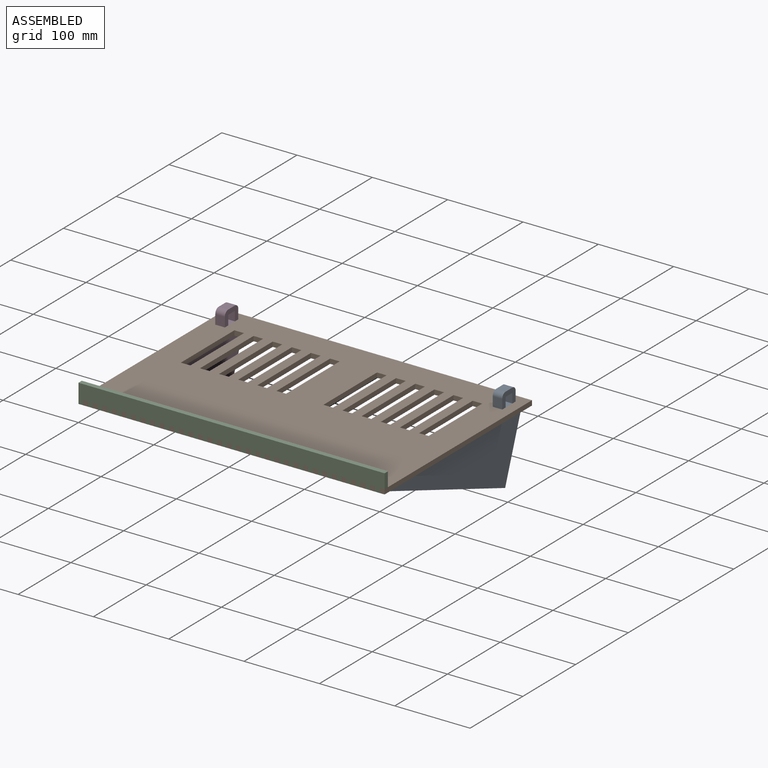
[diagram: assembled view]
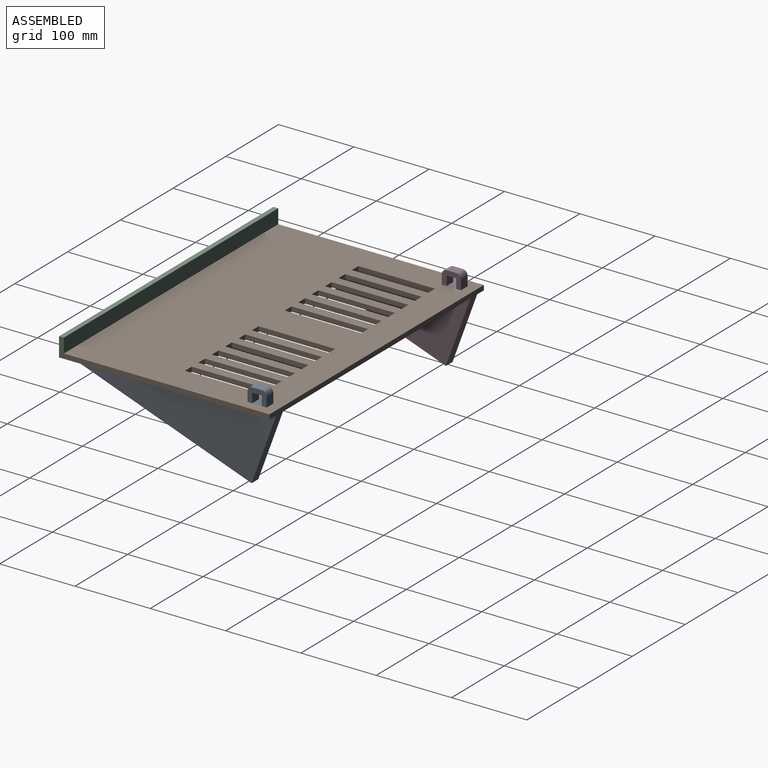
[diagram: assembled view, second angle]
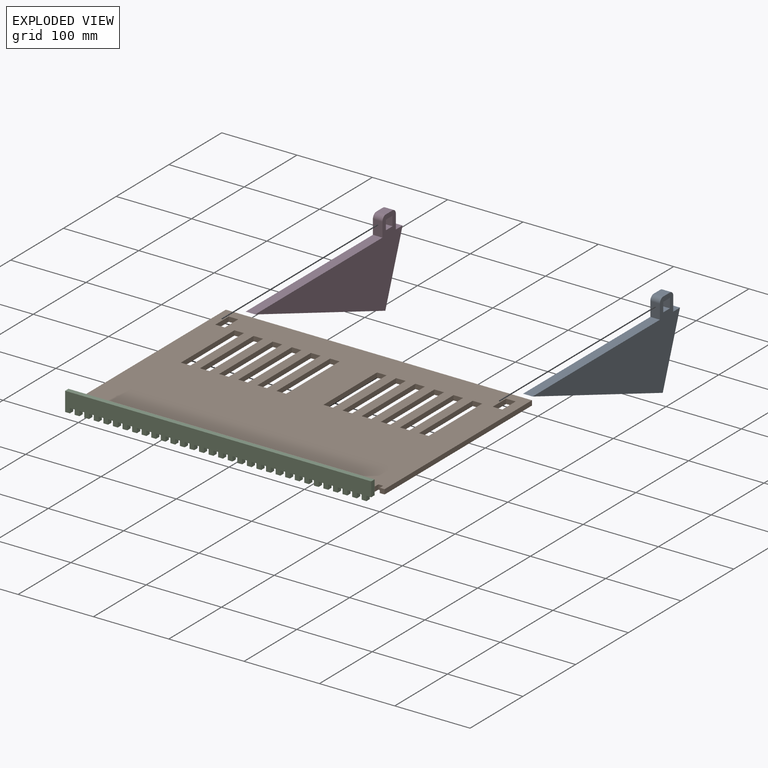
[diagram: exploded view]
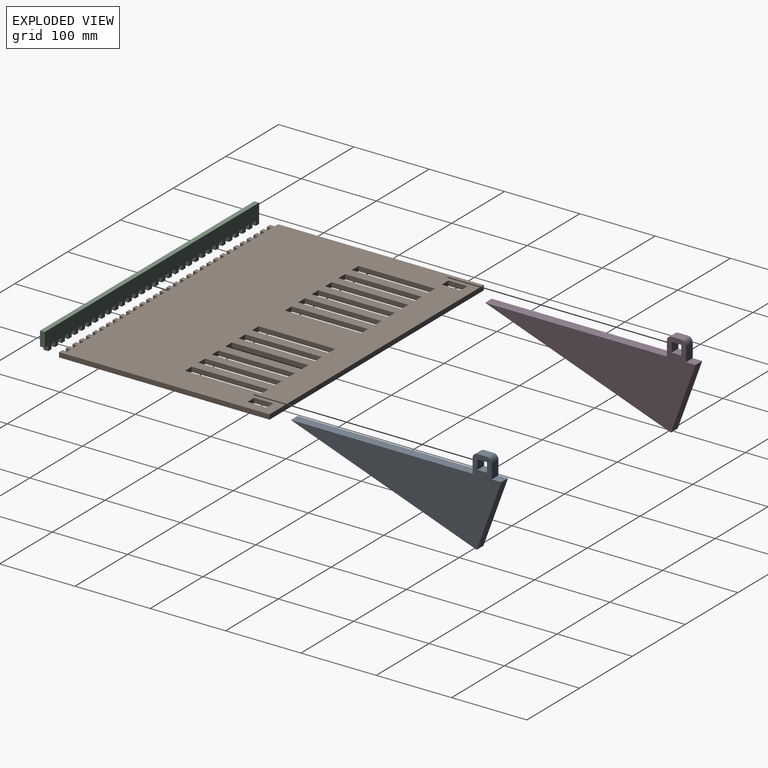
[diagram: exploded view, second angle]
ASSEMBLY  parts=4 mates=3
PART A: 15 faces, bbox 12.7x262.6x113.3 mm
  f0: plane 262.55x113.3mm, normal (1,0,0), area 13011.3mm2, adj f2,f3,f4,f5,f6,f7,f8,f9
  f1: plane 262.55x113.3mm, normal (-1,0,0), area 13011.3mm2, adj f2,f3,f4,f5,f6,f7,f8,f9
  f2: plane 226.75x82.53mm, normal (0,-0.34,0.94), area 3064.5mm2, adj f0,f1,f3,f10
  f3: plane 262.55x12.7mm, normal (0,0,-1), area 3334.4mm2, adj f0,f1,f2,f4
  f4: plane 95.56x12.7mm, normal (0,1,0), area 1213.6mm2, adj f0,f1,f3,f5
  f5: plane 12.7x11.93mm, normal (0,-0.34,0.94), area 161.3mm2, adj f0,f1,f4,f6
  f6: plane 17.9x12.7mm, normal (0,0.94,0.34), area 241.9mm2, adj f0,f1,f5,f7
  f7: cylinder r=6.35mm len=12.7mm, axis (-1,0,0), area 126.7mm2, adj f0,f1,f6,f8
  f8: plane 12.7x11.93mm, normal (0,-0.34,0.94), area 161.3mm2, adj f0,f1,f7,f9
  f9: cylinder r=6.35mm len=12.7mm, axis (-1,0,0), area 126.7mm2, adj f0,f1,f8,f10
  f10: plane 17.9x12.7mm, normal (0,-0.94,-0.34), area 241.9mm2, adj f0,f1,f2,f9
  f11: plane 12.7x11.93mm, normal (0,0.34,-0.94), area 161.3mm2, adj f0,f1,f12,f14
  f12: plane 12.7x11.93mm, normal (0,0.94,0.34), area 161.3mm2, adj f0,f1,f11,f13
  f13: plane 12.7x11.93mm, normal (0,-0.34,0.94), area 161.3mm2, adj f0,f1,f12,f14
  f14: plane 12.7x11.93mm, normal (0,-0.94,-0.34), area 161.3mm2, adj f0,f1,f11,f13
PART B: 188 faces, bbox 406.4x279.4x6.4 mm
  f0: plane 406.4x279.4mm, normal (0,0,1), area 96128.8mm2, adj f2,f3,f4,f5,f6,f7,f8,f9
  f1: plane 406.4x279.4mm, normal (0,0,-1), area 96128.8mm2, adj f2,f3,f4,f5,f6,f7,f8,f9
  f2: plane 6.35x6.35mm, normal (0,-1,0), area 40.3mm2, adj f0,f1,f127,f131
  f3: plane 6.35x6.35mm, normal (0,-1,0), area 40.3mm2, adj f0,f1,f124,f128
  f4: plane 6.35x6.35mm, normal (0,-1,0), area 40.3mm2, adj f0,f1,f121,f125
  f5: plane 6.35x6.35mm, normal (0,-1,0), area 40.3mm2, adj f0,f1,f118,f122
  f6: plane 6.35x6.35mm, normal (0,-1,0), area 40.3mm2, adj f0,f1,f115,f119
  f7: plane 6.35x6.35mm, normal (0,-1,0), area 40.3mm2, adj f0,f1,f112,f116
  f8: plane 6.35x6.35mm, normal (0,-1,0), area 40.3mm2, adj f0,f1,f109,f113
  f9: plane 6.35x6.35mm, normal (0,-1,0), area 40.3mm2, adj f0,f1,f106,f110
  f10: plane 6.35x6.35mm, normal (0,-1,0), area 40.3mm2, adj f0,f1,f103,f107
  f11: plane 6.35x6.35mm, normal (0,-1,0), area 40.3mm2, adj f0,f1,f100,f104
  f12: plane 6.35x6.35mm, normal (0,-1,0), area 40.3mm2, adj f0,f1,f97,f101
  f13: plane 6.35x6.35mm, normal (0,-1,0), area 40.3mm2, adj f0,f1,f94,f98
  f14: plane 6.35x6.35mm, normal (0,-1,0), area 40.3mm2, adj f0,f1,f91,f95
  f15: plane 6.35x6.35mm, normal (0,-1,0), area 40.3mm2, adj f0,f1,f88,f92
  f16: plane 6.35x6.35mm, normal (0,-1,0), area 40.3mm2, adj f0,f1,f85,f89
  f17: plane 6.35x6.35mm, normal (0,-1,0), area 40.3mm2, adj f0,f1,f82,f86
  f18: plane 6.35x6.35mm, normal (0,-1,0), area 40.3mm2, adj f0,f1,f79,f83
  f19: plane 6.35x6.35mm, normal (0,-1,0), area 40.3mm2, adj f0,f1,f76,f80
  f20: plane 6.35x6.35mm, normal (0,-1,0), area 40.3mm2, adj f0,f1,f73,f77
  f21: plane 6.35x6.35mm, normal (0,-1,0), area 40.3mm2, adj f0,f1,f70,f74
  f22: plane 6.35x6.35mm, normal (0,-1,0), area 40.3mm2, adj f0,f1,f67,f71
  f23: plane 6.35x6.35mm, normal (0,-1,0), area 40.3mm2, adj f0,f1,f64,f68
  f24: plane 6.35x6.35mm, normal (0,-1,0), area 40.3mm2, adj f0,f1,f61,f65
  f25: plane 6.35x6.35mm, normal (0,-1,0), area 40.3mm2, adj f0,f1,f58,f62
  f26: plane 6.35x6.35mm, normal (0,-1,0), area 40.3mm2, adj f0,f1,f55,f59
  f27: plane 6.35x6.35mm, normal (0,-1,0), area 40.3mm2, adj f0,f1,f52,f56
  f28: plane 6.35x6.35mm, normal (0,-1,0), area 40.3mm2, adj f0,f1,f49,f53
  f29: plane 6.35x6.35mm, normal (0,-1,0), area 40.3mm2, adj f0,f1,f46,f50
  f30: plane 6.35x6.35mm, normal (0,-1,0), area 40.3mm2, adj f0,f1,f45,f47
  f31: plane 6.35x6.35mm, normal (0,-1,0), area 40.3mm2, adj f0,f1,f40,f43
  f32: plane 6.35x6.35mm, normal (0,-1,0), area 40.3mm2, adj f0,f1,f37,f41
  f33: plane 6.35x6.35mm, normal (0,-1,0), area 40.3mm2, adj f0,f1,f36,f38
  f34: plane 406.4x6.35mm, normal (0,1,0), area 2580.6mm2, adj f0,f1,f35,f36
  f35: plane 273.05x6.35mm, normal (-1,0,0), area 1733.9mm2, adj f0,f1,f34,f130
  f36: plane 279.4x6.35mm, normal (1,0,0), area 1774.2mm2, adj f0,f1,f33,f34
  f37: plane 6.35x6.35mm, normal (1,0,0), area 40.3mm2, adj f0,f1,f32,f39
  f38: plane 6.35x6.35mm, normal (-1,0,0), area 40.3mm2, adj f0,f1,f33,f39
  f39: plane 6.35x6.35mm, normal (0,-1,0), area 40.3mm2, adj f0,f1,f37,f38
  f40: plane 6.35x6.35mm, normal (1,0,0), area 40.3mm2, adj f0,f1,f31,f42
  f41: plane 6.35x6.35mm, normal (-1,0,0), area 40.3mm2, adj f0,f1,f32,f42
  f42: plane 6.35x6.35mm, normal (0,-1,0), area 40.3mm2, adj f0,f1,f40,f41
  f43: plane 6.35x6.35mm, normal (-1,0,0), area 40.3mm2, adj f0,f1,f31,f44
  f44: plane 6.35x6.35mm, normal (0,-1,0), area 40.3mm2, adj f0,f1,f43,f45
  f45: plane 6.35x6.35mm, normal (1,0,0), area 40.3mm2, adj f0,f1,f30,f44
  f46: plane 6.35x6.35mm, normal (1,0,0), area 40.3mm2, adj f0,f1,f29,f48
  f47: plane 6.35x6.35mm, normal (-1,0,0), area 40.3mm2, adj f0,f1,f30,f48
  f48: plane 6.35x6.35mm, normal (0,-1,0), area 40.3mm2, adj f0,f1,f46,f47
  f49: plane 6.35x6.35mm, normal (1,0,0), area 40.3mm2, adj f0,f1,f28,f51
  f50: plane 6.35x6.35mm, normal (-1,0,0), area 40.3mm2, adj f0,f1,f29,f51
  f51: plane 6.35x6.35mm, normal (0,-1,0), area 40.3mm2, adj f0,f1,f49,f50
  f52: plane 6.35x6.35mm, normal (1,0,0), area 40.3mm2, adj f0,f1,f27,f54
  f53: plane 6.35x6.35mm, normal (-1,0,0), area 40.3mm2, adj f0,f1,f28,f54
  f54: plane 6.35x6.35mm, normal (0,-1,0), area 40.3mm2, adj f0,f1,f52,f53
  f55: plane 6.35x6.35mm, normal (1,0,0), area 40.3mm2, adj f0,f1,f26,f57
  f56: plane 6.35x6.35mm, normal (-1,0,0), area 40.3mm2, adj f0,f1,f27,f57
  f57: plane 6.35x6.35mm, normal (0,-1,0), area 40.3mm2, adj f0,f1,f55,f56
  f58: plane 6.35x6.35mm, normal (1,0,0), area 40.3mm2, adj f0,f1,f25,f60
  f59: plane 6.35x6.35mm, normal (-1,0,0), area 40.3mm2, adj f0,f1,f26,f60
  f60: plane 6.35x6.35mm, normal (0,-1,0), area 40.3mm2, adj f0,f1,f58,f59
  f61: plane 6.35x6.35mm, normal (1,0,0), area 40.3mm2, adj f0,f1,f24,f63
  f62: plane 6.35x6.35mm, normal (-1,0,0), area 40.3mm2, adj f0,f1,f25,f63
  f63: plane 6.35x6.35mm, normal (0,-1,0), area 40.3mm2, adj f0,f1,f61,f62
  f64: plane 6.35x6.35mm, normal (1,0,0), area 40.3mm2, adj f0,f1,f23,f66
  f65: plane 6.35x6.35mm, normal (-1,0,0), area 40.3mm2, adj f0,f1,f24,f66
  f66: plane 6.35x6.35mm, normal (0,-1,0), area 40.3mm2, adj f0,f1,f64,f65
  f67: plane 6.35x6.35mm, normal (1,0,0), area 40.3mm2, adj f0,f1,f22,f69
  f68: plane 6.35x6.35mm, normal (-1,0,0), area 40.3mm2, adj f0,f1,f23,f69
  f69: plane 6.35x6.35mm, normal (0,-1,0), area 40.3mm2, adj f0,f1,f67,f68
  f70: plane 6.35x6.35mm, normal (1,0,0), area 40.3mm2, adj f0,f1,f21,f72
  f71: plane 6.35x6.35mm, normal (-1,0,0), area 40.3mm2, adj f0,f1,f22,f72
  f72: plane 6.35x6.35mm, normal (0,-1,0), area 40.3mm2, adj f0,f1,f70,f71
  f73: plane 6.35x6.35mm, normal (1,0,0), area 40.3mm2, adj f0,f1,f20,f75
  f74: plane 6.35x6.35mm, normal (-1,0,0), area 40.3mm2, adj f0,f1,f21,f75
  f75: plane 6.35x6.35mm, normal (0,-1,0), area 40.3mm2, adj f0,f1,f73,f74
  f76: plane 6.35x6.35mm, normal (1,0,0), area 40.3mm2, adj f0,f1,f19,f78
  f77: plane 6.35x6.35mm, normal (-1,0,0), area 40.3mm2, adj f0,f1,f20,f78
  f78: plane 6.35x6.35mm, normal (0,-1,0), area 40.3mm2, adj f0,f1,f76,f77
  f79: plane 6.35x6.35mm, normal (1,0,0), area 40.3mm2, adj f0,f1,f18,f81
  f80: plane 6.35x6.35mm, normal (-1,0,0), area 40.3mm2, adj f0,f1,f19,f81
  f81: plane 6.35x6.35mm, normal (0,-1,0), area 40.3mm2, adj f0,f1,f79,f80
  f82: plane 6.35x6.35mm, normal (1,0,0), area 40.3mm2, adj f0,f1,f17,f84
  f83: plane 6.35x6.35mm, normal (-1,0,0), area 40.3mm2, adj f0,f1,f18,f84
  f84: plane 6.35x6.35mm, normal (0,-1,0), area 40.3mm2, adj f0,f1,f82,f83
  f85: plane 6.35x6.35mm, normal (1,0,0), area 40.3mm2, adj f0,f1,f16,f87
  f86: plane 6.35x6.35mm, normal (-1,0,0), area 40.3mm2, adj f0,f1,f17,f87
  f87: plane 6.35x6.35mm, normal (0,-1,0), area 40.3mm2, adj f0,f1,f85,f86
  f88: plane 6.35x6.35mm, normal (1,0,0), area 40.3mm2, adj f0,f1,f15,f90
  f89: plane 6.35x6.35mm, normal (-1,0,0), area 40.3mm2, adj f0,f1,f16,f90
  f90: plane 6.35x6.35mm, normal (0,-1,0), area 40.3mm2, adj f0,f1,f88,f89
  f91: plane 6.35x6.35mm, normal (1,0,0), area 40.3mm2, adj f0,f1,f14,f93
  f92: plane 6.35x6.35mm, normal (-1,0,0), area 40.3mm2, adj f0,f1,f15,f93
  f93: plane 6.35x6.35mm, normal (0,-1,0), area 40.3mm2, adj f0,f1,f91,f92
  f94: plane 6.35x6.35mm, normal (1,0,0), area 40.3mm2, adj f0,f1,f13,f96
  f95: plane 6.35x6.35mm, normal (-1,0,0), area 40.3mm2, adj f0,f1,f14,f96
  f96: plane 6.35x6.35mm, normal (0,-1,0), area 40.3mm2, adj f0,f1,f94,f95
  f97: plane 6.35x6.35mm, normal (1,0,0), area 40.3mm2, adj f0,f1,f12,f99
  f98: plane 6.35x6.35mm, normal (-1,0,0), area 40.3mm2, adj f0,f1,f13,f99
  f99: plane 6.35x6.35mm, normal (0,-1,0), area 40.3mm2, adj f0,f1,f97,f98
  f100: plane 6.35x6.35mm, normal (1,0,0), area 40.3mm2, adj f0,f1,f11,f102
  f101: plane 6.35x6.35mm, normal (-1,0,0), area 40.3mm2, adj f0,f1,f12,f102
  f102: plane 6.35x6.35mm, normal (0,-1,0), area 40.3mm2, adj f0,f1,f100,f101
  f103: plane 6.35x6.35mm, normal (1,0,0), area 40.3mm2, adj f0,f1,f10,f105
  f104: plane 6.35x6.35mm, normal (-1,0,0), area 40.3mm2, adj f0,f1,f11,f105
  f105: plane 6.35x6.35mm, normal (0,-1,0), area 40.3mm2, adj f0,f1,f103,f104
  f106: plane 6.35x6.35mm, normal (1,0,0), area 40.3mm2, adj f0,f1,f9,f108
  f107: plane 6.35x6.35mm, normal (-1,0,0), area 40.3mm2, adj f0,f1,f10,f108
  f108: plane 6.35x6.35mm, normal (0,-1,0), area 40.3mm2, adj f0,f1,f106,f107
  f109: plane 6.35x6.35mm, normal (1,0,0), area 40.3mm2, adj f0,f1,f8,f111
  f110: plane 6.35x6.35mm, normal (-1,0,0), area 40.3mm2, adj f0,f1,f9,f111
  f111: plane 6.35x6.35mm, normal (0,-1,0), area 40.3mm2, adj f0,f1,f109,f110
  f112: plane 6.35x6.35mm, normal (1,0,0), area 40.3mm2, adj f0,f1,f7,f114
  f113: plane 6.35x6.35mm, normal (-1,0,0), area 40.3mm2, adj f0,f1,f8,f114
  f114: plane 6.35x6.35mm, normal (0,-1,0), area 40.3mm2, adj f0,f1,f112,f113
  f115: plane 6.35x6.35mm, normal (1,0,0), area 40.3mm2, adj f0,f1,f6,f117
  f116: plane 6.35x6.35mm, normal (-1,0,0), area 40.3mm2, adj f0,f1,f7,f117
  f117: plane 6.35x6.35mm, normal (0,-1,0), area 40.3mm2, adj f0,f1,f115,f116
  f118: plane 6.35x6.35mm, normal (1,0,0), area 40.3mm2, adj f0,f1,f5,f120
  f119: plane 6.35x6.35mm, normal (-1,0,0), area 40.3mm2, adj f0,f1,f6,f120
  f120: plane 6.35x6.35mm, normal (0,-1,0), area 40.3mm2, adj f0,f1,f118,f119
  f121: plane 6.35x6.35mm, normal (1,0,0), area 40.3mm2, adj f0,f1,f4,f123
  f122: plane 6.35x6.35mm, normal (-1,0,0), area 40.3mm2, adj f0,f1,f5,f123
  f123: plane 6.35x6.35mm, normal (0,-1,0), area 40.3mm2, adj f0,f1,f121,f122
  f124: plane 6.35x6.35mm, normal (1,0,0), area 40.3mm2, adj f0,f1,f3,f126
  f125: plane 6.35x6.35mm, normal (-1,0,0), area 40.3mm2, adj f0,f1,f4,f126
  f126: plane 6.35x6.35mm, normal (0,-1,0), area 40.3mm2, adj f0,f1,f124,f125
  f127: plane 6.35x6.35mm, normal (1,0,0), area 40.3mm2, adj f0,f1,f2,f129
  f128: plane 6.35x6.35mm, normal (-1,0,0), area 40.3mm2, adj f0,f1,f3,f129
  f129: plane 6.35x6.35mm, normal (0,-1,0), area 40.3mm2, adj f0,f1,f127,f128
  f130: plane 6.35x6.35mm, normal (0,-1,0), area 40.3mm2, adj f0,f1,f35,f131
  f131: plane 6.35x6.35mm, normal (-1,0,0), area 40.3mm2, adj f0,f1,f2,f130
  f132: plane 12.7x6.35mm, normal (0,-1,0), area 80.6mm2, adj f0,f1,f133,f135
  f133: plane 25.4x6.35mm, normal (1,0,0), area 161.3mm2, adj f0,f1,f132,f134
  f134: plane 12.7x6.35mm, normal (0,1,0), area 80.6mm2, adj f0,f1,f133,f135
  f135: plane 25.4x6.35mm, normal (-1,0,0), area 161.3mm2, adj f0,f1,f132,f134
  f136: plane 12.7x6.35mm, normal (0,-1,0), area 80.6mm2, adj f0,f1,f137,f139
  f137: plane 25.4x6.35mm, normal (1,0,0), area 161.3mm2, adj f0,f1,f136,f138
  f138: plane 12.7x6.35mm, normal (0,1,0), area 80.6mm2, adj f0,f1,f137,f139
  f139: plane 25.4x6.35mm, normal (-1,0,0), area 161.3mm2, adj f0,f1,f136,f138
  f140: plane 12.7x6.35mm, normal (0,-1,0), area 80.6mm2, adj f0,f1,f141,f143
  f141: plane 101.6x6.35mm, normal (1,0,0), area 645.2mm2, adj f0,f1,f140,f142
  f142: plane 12.7x6.35mm, normal (0,1,0), area 80.6mm2, adj f0,f1,f141,f143
  f143: plane 101.6x6.35mm, normal (-1,0,0), area 645.2mm2, adj f0,f1,f140,f142
  f144: plane 12.7x6.35mm, normal (0,-1,0), area 80.6mm2, adj f0,f1,f145,f147
  f145: plane 101.6x6.35mm, normal (1,0,0), area 645.2mm2, adj f0,f1,f144,f146
  f146: plane 12.7x6.35mm, normal (0,1,0), area 80.6mm2, adj f0,f1,f145,f147
  f147: plane 101.6x6.35mm, normal (-1,0,0), area 645.2mm2, adj f0,f1,f144,f146
  f148: plane 12.7x6.35mm, normal (0,-1,0), area 80.6mm2, adj f0,f1,f149,f151
  f149: plane 101.6x6.35mm, normal (1,0,0), area 645.2mm2, adj f0,f1,f148,f150
  f150: plane 12.7x6.35mm, normal (0,1,0), area 80.6mm2, adj f0,f1,f149,f151
  f151: plane 101.6x6.35mm, normal (-1,0,0), area 645.2mm2, adj f0,f1,f148,f150
  f152: plane 12.7x6.35mm, normal (0,-1,0), area 80.6mm2, adj f0,f1,f153,f155
  f153: plane 101.6x6.35mm, normal (1,0,0), area 645.2mm2, adj f0,f1,f152,f154
  f154: plane 12.7x6.35mm, normal (0,1,0), area 80.6mm2, adj f0,f1,f153,f155
  f155: plane 101.6x6.35mm, normal (-1,0,0), area 645.2mm2, adj f0,f1,f152,f154
  f156: plane 12.7x6.35mm, normal (0,-1,0), area 80.6mm2, adj f0,f1,f157,f159
  f157: plane 101.6x6.35mm, normal (1,0,0), area 645.2mm2, adj f0,f1,f156,f158
  f158: plane 12.7x6.35mm, normal (0,1,0), area 80.6mm2, adj f0,f1,f157,f159
  f159: plane 101.6x6.35mm, normal (-1,0,0), area 645.2mm2, adj f0,f1,f156,f158
  f160: plane 101.6x6.35mm, normal (-1,0,0), area 645.2mm2, adj f0,f1,f161,f163
  f161: plane 12.7x6.35mm, normal (0,-1,0), area 80.6mm2, adj f0,f1,f160,f162
  f162: plane 101.6x6.35mm, normal (1,0,0), area 645.2mm2, adj f0,f1,f161,f163
  f163: plane 12.7x6.35mm, normal (0,1,0), area 80.6mm2, adj f0,f1,f160,f162
  f164: plane 12.7x6.35mm, normal (0,1,0), area 80.6mm2, adj f0,f1,f165,f167
  f165: plane 101.6x6.35mm, normal (-1,0,0), area 645.2mm2, adj f0,f1,f164,f166
  f166: plane 12.7x6.35mm, normal (0,-1,0), area 80.6mm2, adj f0,f1,f165,f167
  f167: plane 101.6x6.35mm, normal (1,0,0), area 645.2mm2, adj f0,f1,f164,f166
  f168: plane 101.6x6.35mm, normal (-1,0,0), area 645.2mm2, adj f0,f1,f169,f171
  f169: plane 12.7x6.35mm, normal (0,-1,0), area 80.6mm2, adj f0,f1,f168,f170
  f170: plane 101.6x6.35mm, normal (1,0,0), area 645.2mm2, adj f0,f1,f169,f171
  f171: plane 12.7x6.35mm, normal (0,1,0), area 80.6mm2, adj f0,f1,f168,f170
  f172: plane 101.6x6.35mm, normal (-1,0,0), area 645.2mm2, adj f0,f1,f173,f175
  f173: plane 12.7x6.35mm, normal (0,-1,0), area 80.6mm2, adj f0,f1,f172,f174
  f174: plane 101.6x6.35mm, normal (1,0,0), area 645.2mm2, adj f0,f1,f173,f175
  f175: plane 12.7x6.35mm, normal (0,1,0), area 80.6mm2, adj f0,f1,f172,f174
  f176: plane 12.7x6.35mm, normal (0,-1,0), area 80.6mm2, adj f0,f1,f177,f179
  f177: plane 101.6x6.35mm, normal (1,0,0), area 645.2mm2, adj f0,f1,f176,f178
  f178: plane 12.7x6.35mm, normal (0,1,0), area 80.6mm2, adj f0,f1,f177,f179
  f179: plane 101.6x6.35mm, normal (-1,0,0), area 645.2mm2, adj f0,f1,f176,f178
  f180: plane 101.6x6.35mm, normal (-1,0,0), area 645.2mm2, adj f0,f1,f181,f183
  f181: plane 12.7x6.35mm, normal (0,-1,0), area 80.6mm2, adj f0,f1,f180,f182
  f182: plane 101.6x6.35mm, normal (1,0,0), area 645.2mm2, adj f0,f1,f181,f183
  f183: plane 12.7x6.35mm, normal (0,1,0), area 80.6mm2, adj f0,f1,f180,f182
  f184: plane 12.7x6.35mm, normal (0,-1,0), area 80.6mm2, adj f0,f1,f185,f187
  f185: plane 101.6x6.35mm, normal (1,0,0), area 645.2mm2, adj f0,f1,f184,f186
  f186: plane 12.7x6.35mm, normal (0,1,0), area 80.6mm2, adj f0,f1,f185,f187
  f187: plane 101.6x6.35mm, normal (-1,0,0), area 645.2mm2, adj f0,f1,f184,f186
PART C: 132 faces, bbox 406.4x25.4x6.4 mm
  f0: plane 6.35x6.35mm, normal (0,-1,0), area 40.3mm2, adj f32,f33,f127,f131
  f1: plane 6.35x6.35mm, normal (0,-1,0), area 40.3mm2, adj f32,f33,f124,f128
  f2: plane 6.35x6.35mm, normal (0,-1,0), area 40.3mm2, adj f32,f33,f121,f125
  f3: plane 6.35x6.35mm, normal (0,-1,0), area 40.3mm2, adj f32,f33,f118,f122
  f4: plane 6.35x6.35mm, normal (0,-1,0), area 40.3mm2, adj f32,f33,f115,f119
  f5: plane 6.35x6.35mm, normal (0,-1,0), area 40.3mm2, adj f32,f33,f112,f116
  f6: plane 6.35x6.35mm, normal (0,-1,0), area 40.3mm2, adj f32,f33,f109,f113
  f7: plane 6.35x6.35mm, normal (0,-1,0), area 40.3mm2, adj f32,f33,f106,f110
  f8: plane 6.35x6.35mm, normal (0,-1,0), area 40.3mm2, adj f32,f33,f103,f107
  f9: plane 6.35x6.35mm, normal (0,-1,0), area 40.3mm2, adj f32,f33,f100,f104
  f10: plane 6.35x6.35mm, normal (0,-1,0), area 40.3mm2, adj f32,f33,f97,f101
  f11: plane 6.35x6.35mm, normal (0,-1,0), area 40.3mm2, adj f32,f33,f94,f98
  f12: plane 6.35x6.35mm, normal (0,-1,0), area 40.3mm2, adj f32,f33,f91,f95
  f13: plane 6.35x6.35mm, normal (0,-1,0), area 40.3mm2, adj f32,f33,f88,f92
  f14: plane 6.35x6.35mm, normal (0,-1,0), area 40.3mm2, adj f32,f33,f85,f89
  f15: plane 6.35x6.35mm, normal (0,-1,0), area 40.3mm2, adj f32,f33,f82,f86
  f16: plane 6.35x6.35mm, normal (0,-1,0), area 40.3mm2, adj f32,f33,f79,f83
  f17: plane 6.35x6.35mm, normal (0,-1,0), area 40.3mm2, adj f32,f33,f76,f80
  f18: plane 6.35x6.35mm, normal (0,-1,0), area 40.3mm2, adj f32,f33,f73,f77
  f19: plane 6.35x6.35mm, normal (0,-1,0), area 40.3mm2, adj f32,f33,f70,f74
  f20: plane 6.35x6.35mm, normal (0,-1,0), area 40.3mm2, adj f32,f33,f67,f71
  f21: plane 6.35x6.35mm, normal (0,-1,0), area 40.3mm2, adj f32,f33,f64,f68
  f22: plane 6.35x6.35mm, normal (0,-1,0), area 40.3mm2, adj f32,f33,f61,f65
  f23: plane 6.35x6.35mm, normal (0,-1,0), area 40.3mm2, adj f32,f33,f58,f62
  f24: plane 6.35x6.35mm, normal (0,-1,0), area 40.3mm2, adj f32,f33,f55,f59
  f25: plane 6.35x6.35mm, normal (0,-1,0), area 40.3mm2, adj f32,f33,f52,f56
  f26: plane 6.35x6.35mm, normal (0,-1,0), area 40.3mm2, adj f32,f33,f49,f53
  f27: plane 6.35x6.35mm, normal (0,-1,0), area 40.3mm2, adj f32,f33,f46,f50
  f28: plane 6.35x6.35mm, normal (0,-1,0), area 40.3mm2, adj f32,f33,f45,f47
  f29: plane 6.35x6.35mm, normal (0,-1,0), area 40.3mm2, adj f32,f33,f40,f43
  f30: plane 6.35x6.35mm, normal (0,-1,0), area 40.3mm2, adj f32,f33,f37,f41
  f31: plane 6.35x6.35mm, normal (0,-1,0), area 40.3mm2, adj f32,f33,f36,f38
  f32: plane 406.4x25.4mm, normal (0,0,1), area 9032.2mm2, adj f0,f1,f2,f3,f4,f5,f6,f7
  f33: plane 406.4x25.4mm, normal (0,0,-1), area 9032.2mm2, adj f0,f1,f2,f3,f4,f5,f6,f7
  f34: plane 406.4x6.35mm, normal (0,1,0), area 2580.6mm2, adj f32,f33,f35,f36
  f35: plane 19.05x6.35mm, normal (-1,0,0), area 121mm2, adj f32,f33,f34,f130
  f36: plane 25.4x6.35mm, normal (1,0,0), area 161.3mm2, adj f31,f32,f33,f34
  f37: plane 6.35x6.35mm, normal (1,0,0), area 40.3mm2, adj f30,f32,f33,f39
  f38: plane 6.35x6.35mm, normal (-1,0,0), area 40.3mm2, adj f31,f32,f33,f39
  f39: plane 6.35x6.35mm, normal (0,-1,0), area 40.3mm2, adj f32,f33,f37,f38
  f40: plane 6.35x6.35mm, normal (1,0,0), area 40.3mm2, adj f29,f32,f33,f42
  f41: plane 6.35x6.35mm, normal (-1,0,0), area 40.3mm2, adj f30,f32,f33,f42
  f42: plane 6.35x6.35mm, normal (0,-1,0), area 40.3mm2, adj f32,f33,f40,f41
  f43: plane 6.35x6.35mm, normal (-1,0,0), area 40.3mm2, adj f29,f32,f33,f44
  f44: plane 6.35x6.35mm, normal (0,-1,0), area 40.3mm2, adj f32,f33,f43,f45
  f45: plane 6.35x6.35mm, normal (1,0,0), area 40.3mm2, adj f28,f32,f33,f44
  f46: plane 6.35x6.35mm, normal (1,0,0), area 40.3mm2, adj f27,f32,f33,f48
  f47: plane 6.35x6.35mm, normal (-1,0,0), area 40.3mm2, adj f28,f32,f33,f48
  f48: plane 6.35x6.35mm, normal (0,-1,0), area 40.3mm2, adj f32,f33,f46,f47
  f49: plane 6.35x6.35mm, normal (1,0,0), area 40.3mm2, adj f26,f32,f33,f51
  f50: plane 6.35x6.35mm, normal (-1,0,0), area 40.3mm2, adj f27,f32,f33,f51
  f51: plane 6.35x6.35mm, normal (0,-1,0), area 40.3mm2, adj f32,f33,f49,f50
  f52: plane 6.35x6.35mm, normal (1,0,0), area 40.3mm2, adj f25,f32,f33,f54
  f53: plane 6.35x6.35mm, normal (-1,0,0), area 40.3mm2, adj f26,f32,f33,f54
  f54: plane 6.35x6.35mm, normal (0,-1,0), area 40.3mm2, adj f32,f33,f52,f53
  f55: plane 6.35x6.35mm, normal (1,0,0), area 40.3mm2, adj f24,f32,f33,f57
  f56: plane 6.35x6.35mm, normal (-1,0,0), area 40.3mm2, adj f25,f32,f33,f57
  f57: plane 6.35x6.35mm, normal (0,-1,0), area 40.3mm2, adj f32,f33,f55,f56
  f58: plane 6.35x6.35mm, normal (1,0,0), area 40.3mm2, adj f23,f32,f33,f60
  f59: plane 6.35x6.35mm, normal (-1,0,0), area 40.3mm2, adj f24,f32,f33,f60
  f60: plane 6.35x6.35mm, normal (0,-1,0), area 40.3mm2, adj f32,f33,f58,f59
  f61: plane 6.35x6.35mm, normal (1,0,0), area 40.3mm2, adj f22,f32,f33,f63
  f62: plane 6.35x6.35mm, normal (-1,0,0), area 40.3mm2, adj f23,f32,f33,f63
  f63: plane 6.35x6.35mm, normal (0,-1,0), area 40.3mm2, adj f32,f33,f61,f62
  f64: plane 6.35x6.35mm, normal (1,0,0), area 40.3mm2, adj f21,f32,f33,f66
  f65: plane 6.35x6.35mm, normal (-1,0,0), area 40.3mm2, adj f22,f32,f33,f66
  f66: plane 6.35x6.35mm, normal (0,-1,0), area 40.3mm2, adj f32,f33,f64,f65
  f67: plane 6.35x6.35mm, normal (1,0,0), area 40.3mm2, adj f20,f32,f33,f69
  f68: plane 6.35x6.35mm, normal (-1,0,0), area 40.3mm2, adj f21,f32,f33,f69
  f69: plane 6.35x6.35mm, normal (0,-1,0), area 40.3mm2, adj f32,f33,f67,f68
  f70: plane 6.35x6.35mm, normal (1,0,0), area 40.3mm2, adj f19,f32,f33,f72
  f71: plane 6.35x6.35mm, normal (-1,0,0), area 40.3mm2, adj f20,f32,f33,f72
  f72: plane 6.35x6.35mm, normal (0,-1,0), area 40.3mm2, adj f32,f33,f70,f71
  f73: plane 6.35x6.35mm, normal (1,0,0), area 40.3mm2, adj f18,f32,f33,f75
  f74: plane 6.35x6.35mm, normal (-1,0,0), area 40.3mm2, adj f19,f32,f33,f75
  f75: plane 6.35x6.35mm, normal (0,-1,0), area 40.3mm2, adj f32,f33,f73,f74
  f76: plane 6.35x6.35mm, normal (1,0,0), area 40.3mm2, adj f17,f32,f33,f78
  f77: plane 6.35x6.35mm, normal (-1,0,0), area 40.3mm2, adj f18,f32,f33,f78
  f78: plane 6.35x6.35mm, normal (0,-1,0), area 40.3mm2, adj f32,f33,f76,f77
  f79: plane 6.35x6.35mm, normal (1,0,0), area 40.3mm2, adj f16,f32,f33,f81
  f80: plane 6.35x6.35mm, normal (-1,0,0), area 40.3mm2, adj f17,f32,f33,f81
  f81: plane 6.35x6.35mm, normal (0,-1,0), area 40.3mm2, adj f32,f33,f79,f80
  f82: plane 6.35x6.35mm, normal (1,0,0), area 40.3mm2, adj f15,f32,f33,f84
  f83: plane 6.35x6.35mm, normal (-1,0,0), area 40.3mm2, adj f16,f32,f33,f84
  f84: plane 6.35x6.35mm, normal (0,-1,0), area 40.3mm2, adj f32,f33,f82,f83
  f85: plane 6.35x6.35mm, normal (1,0,0), area 40.3mm2, adj f14,f32,f33,f87
  f86: plane 6.35x6.35mm, normal (-1,0,0), area 40.3mm2, adj f15,f32,f33,f87
  f87: plane 6.35x6.35mm, normal (0,-1,0), area 40.3mm2, adj f32,f33,f85,f86
  f88: plane 6.35x6.35mm, normal (1,0,0), area 40.3mm2, adj f13,f32,f33,f90
  f89: plane 6.35x6.35mm, normal (-1,0,0), area 40.3mm2, adj f14,f32,f33,f90
  f90: plane 6.35x6.35mm, normal (0,-1,0), area 40.3mm2, adj f32,f33,f88,f89
  f91: plane 6.35x6.35mm, normal (1,0,0), area 40.3mm2, adj f12,f32,f33,f93
  f92: plane 6.35x6.35mm, normal (-1,0,0), area 40.3mm2, adj f13,f32,f33,f93
  f93: plane 6.35x6.35mm, normal (0,-1,0), area 40.3mm2, adj f32,f33,f91,f92
  f94: plane 6.35x6.35mm, normal (1,0,0), area 40.3mm2, adj f11,f32,f33,f96
  f95: plane 6.35x6.35mm, normal (-1,0,0), area 40.3mm2, adj f12,f32,f33,f96
  f96: plane 6.35x6.35mm, normal (0,-1,0), area 40.3mm2, adj f32,f33,f94,f95
  f97: plane 6.35x6.35mm, normal (1,0,0), area 40.3mm2, adj f10,f32,f33,f99
  f98: plane 6.35x6.35mm, normal (-1,0,0), area 40.3mm2, adj f11,f32,f33,f99
  f99: plane 6.35x6.35mm, normal (0,-1,0), area 40.3mm2, adj f32,f33,f97,f98
  f100: plane 6.35x6.35mm, normal (1,0,0), area 40.3mm2, adj f9,f32,f33,f102
  f101: plane 6.35x6.35mm, normal (-1,0,0), area 40.3mm2, adj f10,f32,f33,f102
  f102: plane 6.35x6.35mm, normal (0,-1,0), area 40.3mm2, adj f32,f33,f100,f101
  f103: plane 6.35x6.35mm, normal (1,0,0), area 40.3mm2, adj f8,f32,f33,f105
  f104: plane 6.35x6.35mm, normal (-1,0,0), area 40.3mm2, adj f9,f32,f33,f105
  f105: plane 6.35x6.35mm, normal (0,-1,0), area 40.3mm2, adj f32,f33,f103,f104
  f106: plane 6.35x6.35mm, normal (1,0,0), area 40.3mm2, adj f7,f32,f33,f108
  f107: plane 6.35x6.35mm, normal (-1,0,0), area 40.3mm2, adj f8,f32,f33,f108
  f108: plane 6.35x6.35mm, normal (0,-1,0), area 40.3mm2, adj f32,f33,f106,f107
  f109: plane 6.35x6.35mm, normal (1,0,0), area 40.3mm2, adj f6,f32,f33,f111
  f110: plane 6.35x6.35mm, normal (-1,0,0), area 40.3mm2, adj f7,f32,f33,f111
  f111: plane 6.35x6.35mm, normal (0,-1,0), area 40.3mm2, adj f32,f33,f109,f110
  f112: plane 6.35x6.35mm, normal (1,0,0), area 40.3mm2, adj f5,f32,f33,f114
  f113: plane 6.35x6.35mm, normal (-1,0,0), area 40.3mm2, adj f6,f32,f33,f114
  f114: plane 6.35x6.35mm, normal (0,-1,0), area 40.3mm2, adj f32,f33,f112,f113
  f115: plane 6.35x6.35mm, normal (1,0,0), area 40.3mm2, adj f4,f32,f33,f117
  f116: plane 6.35x6.35mm, normal (-1,0,0), area 40.3mm2, adj f5,f32,f33,f117
  f117: plane 6.35x6.35mm, normal (0,-1,0), area 40.3mm2, adj f32,f33,f115,f116
  f118: plane 6.35x6.35mm, normal (1,0,0), area 40.3mm2, adj f3,f32,f33,f120
  f119: plane 6.35x6.35mm, normal (-1,0,0), area 40.3mm2, adj f4,f32,f33,f120
  f120: plane 6.35x6.35mm, normal (0,-1,0), area 40.3mm2, adj f32,f33,f118,f119
  f121: plane 6.35x6.35mm, normal (1,0,0), area 40.3mm2, adj f2,f32,f33,f123
  f122: plane 6.35x6.35mm, normal (-1,0,0), area 40.3mm2, adj f3,f32,f33,f123
  f123: plane 6.35x6.35mm, normal (0,-1,0), area 40.3mm2, adj f32,f33,f121,f122
  f124: plane 6.35x6.35mm, normal (1,0,0), area 40.3mm2, adj f1,f32,f33,f126
  f125: plane 6.35x6.35mm, normal (-1,0,0), area 40.3mm2, adj f2,f32,f33,f126
  f126: plane 6.35x6.35mm, normal (0,-1,0), area 40.3mm2, adj f32,f33,f124,f125
  f127: plane 6.35x6.35mm, normal (1,0,0), area 40.3mm2, adj f0,f32,f33,f129
  f128: plane 6.35x6.35mm, normal (-1,0,0), area 40.3mm2, adj f1,f32,f33,f129
  f129: plane 6.35x6.35mm, normal (0,-1,0), area 40.3mm2, adj f32,f33,f127,f128
  f130: plane 6.35x6.35mm, normal (0,-1,0), area 40.3mm2, adj f32,f33,f35,f131
  f131: plane 6.35x6.35mm, normal (-1,0,0), area 40.3mm2, adj f0,f32,f33,f130
PART D: same geometry as A
PLACE A rot(axis=(-1,0,0),20deg) t=(173.43,79.14,39.3)mm
PLACE B t=(-4.98,81.62,79.73)mm
PLACE C rot(axis=(0,-0.71,-0.71),180deg) t=(1.12,-31.92,188.86)mm
PLACE D rot(axis=(-1,0,0),20deg) t=(-194.87,79.14,39.3)mm
MATE fastened A.f10 <-> B.f134  axis (0,-1,0) through (179.78,209.38,79.73)mm
MATE fastened D.f10 <-> B.f138  axis (0,-1,0) through (-188.52,209.38,79.73)mm
MATE fastened B.f130 <-> C.f32  axis (0,-1,0) through (-204.4,-25.57,79.73)mm
